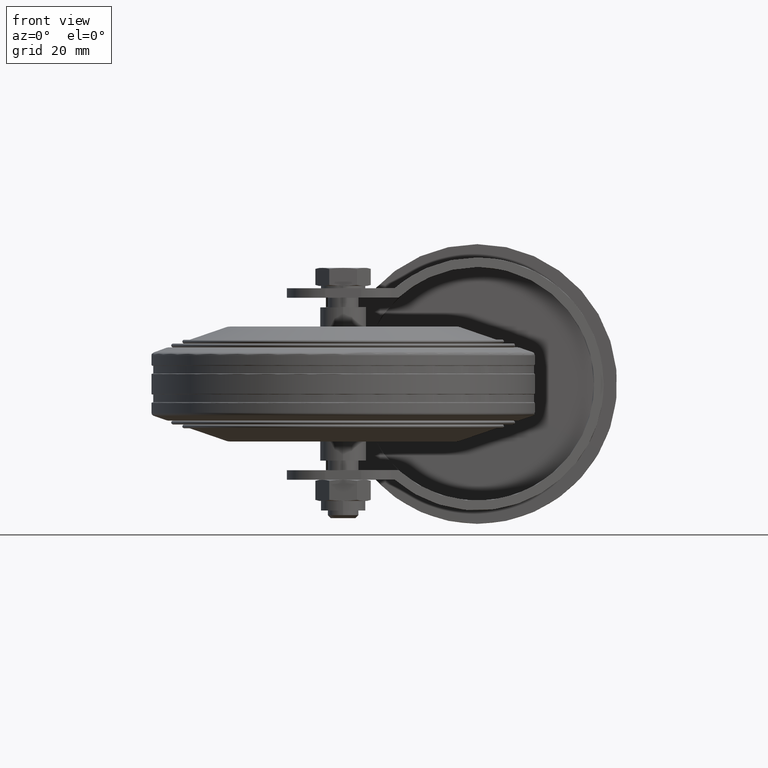
[diagram: clean part render]
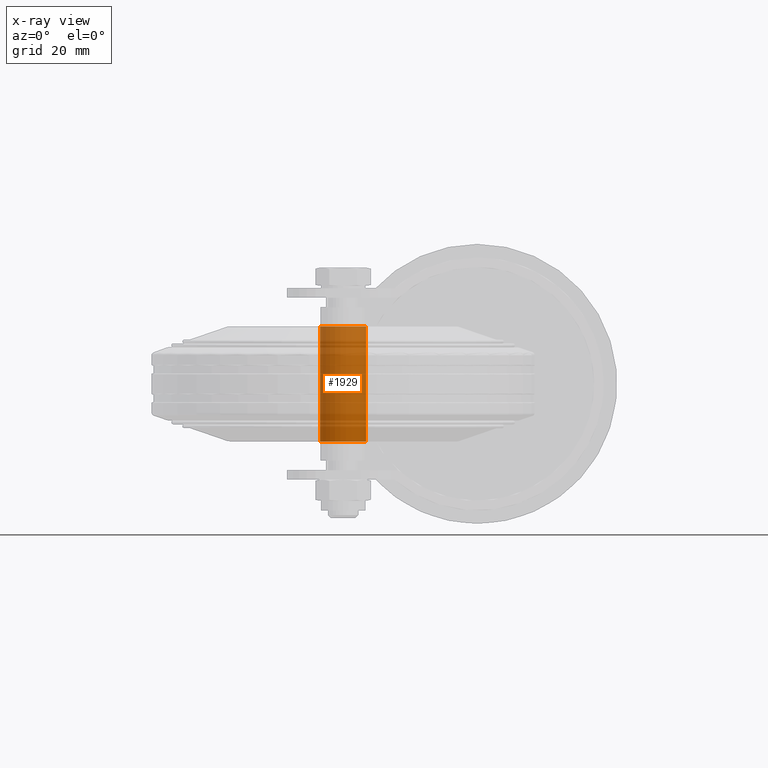
[diagram: x-ray — body ghosted, one internal face saturated and labeled with its STEP entity id]
A machine part, front view, then the same camera in x-ray: the body is ghosted and one INTERNAL B-rep face — a face not visible from any outside direction — is saturated and labeled: STEP entity #1929.
In plain terms, the highlighted cylindrical surface (bore or boss wall) has radius 6 mm, axis along (0, 0, -1).
Its self-contained STEP definition (entity closure, byte-faithful):
#385=FACE_OUTER_BOUND('',#541,.T.);
#541=EDGE_LOOP('',(#1773,#1774,#1775,#1776));
#668=CIRCLE('',#2296,6.);
#675=CIRCLE('',#2308,6.);
#755=LINE('',#3585,#830);
#830=VECTOR('',#2929,6.);
#985=VERTEX_POINT('',#3563);
#990=VERTEX_POINT('',#3582);
#1242=EDGE_CURVE('',#985,#985,#668,.T.);
#1251=EDGE_CURVE('',#990,#990,#675,.T.);
#1252=EDGE_CURVE('',#990,#985,#755,.T.);
#1773=ORIENTED_EDGE('',*,*,#1251,.F.);
#1774=ORIENTED_EDGE('',*,*,#1252,.T.);
#1775=ORIENTED_EDGE('',*,*,#1242,.T.);
#1776=ORIENTED_EDGE('',*,*,#1252,.F.);
#1801=CYLINDRICAL_SURFACE('',#2309,6.);
#1929=ADVANCED_FACE('',(#385),#1801,.F.);
#2296=AXIS2_PLACEMENT_3D('',#3564,#2899,#2900);
#2308=AXIS2_PLACEMENT_3D('',#3583,#2925,#2926);
#2309=AXIS2_PLACEMENT_3D('',#3584,#2927,#2928);
#2899=DIRECTION('center_axis',(6.12323399573677E-17,0.,-1.));
#2900=DIRECTION('ref_axis',(-1.,0.,-6.12323399573677E-17));
#2925=DIRECTION('center_axis',(6.12323399573677E-17,0.,-1.));
#2926=DIRECTION('ref_axis',(-1.,0.,-6.12323399573677E-17));
#2927=DIRECTION('center_axis',(6.12323399573677E-17,0.,-1.));
#2928=DIRECTION('ref_axis',(-1.,0.,-6.12323399573677E-17));
#2929=DIRECTION('',(6.12323399573677E-17,0.,-1.));
#3563=CARTESIAN_POINT('',(6.,-7.34788079488412E-16,-15.));
#3564=CARTESIAN_POINT('Origin',(9.18485099360515E-16,0.,-15.));
#3582=CARTESIAN_POINT('',(6.,-7.34788079488412E-16,15.));
#3583=CARTESIAN_POINT('Origin',(-9.18485099360515E-16,0.,15.));
#3584=CARTESIAN_POINT('Origin',(9.18485099360515E-16,0.,-15.));
#3585=CARTESIAN_POINT('',(6.,-7.34788079488412E-16,-15.));